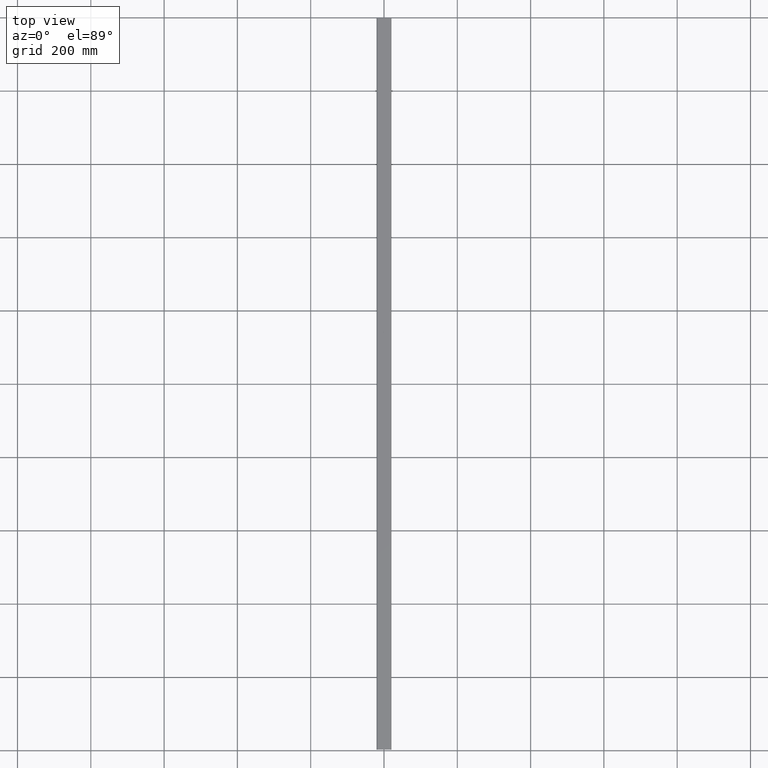
[diagram: clean part render]
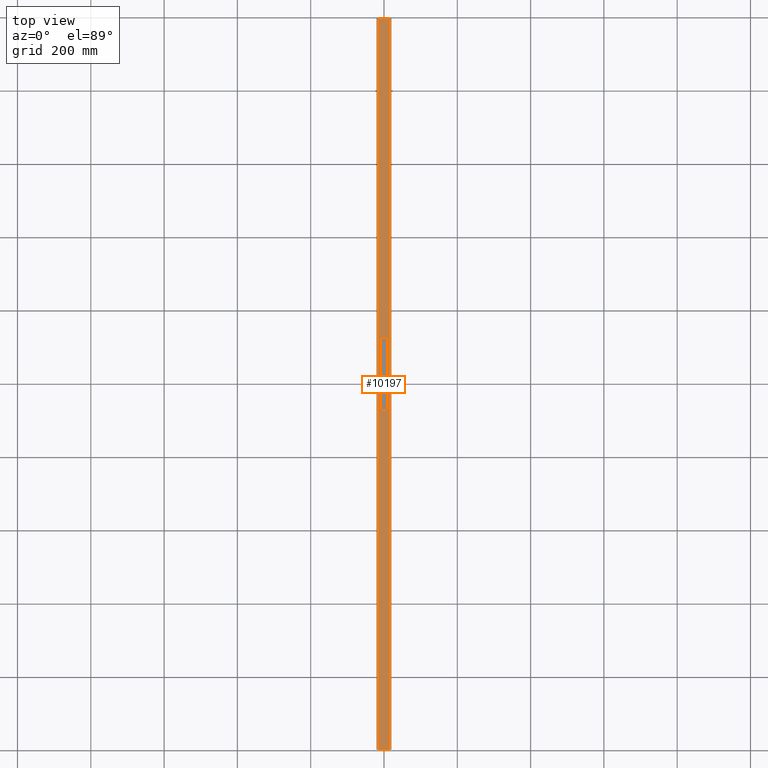
[diagram: same view with one face highlighted and labeled with its STEP entity id]
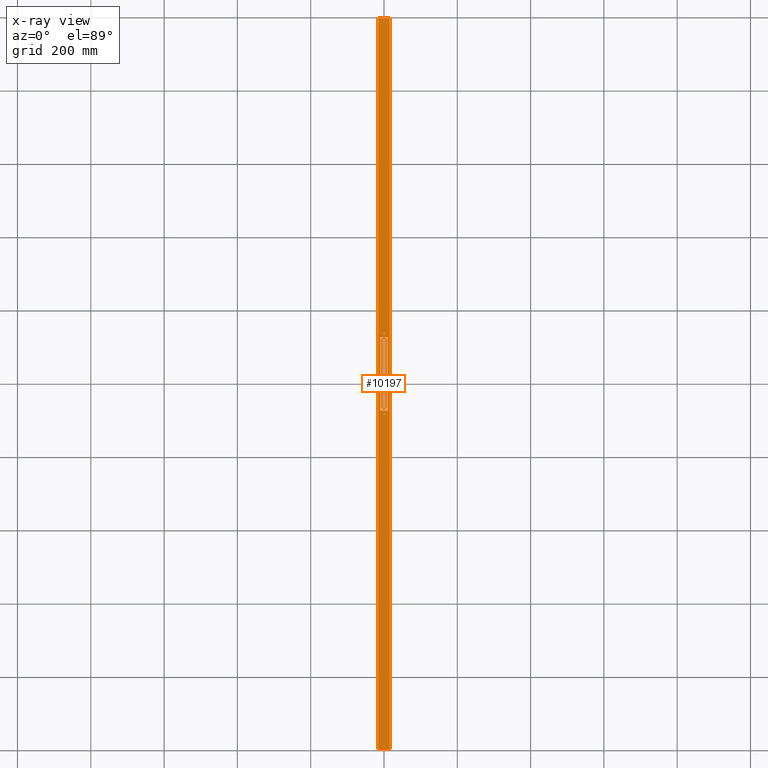
[diagram: x-ray of the same camera — body ghosted, the highlighted face saturated]
A machine part, top view. The second image highlights one B-rep face of the part: STEP entity #10197.
The next image is the same camera in x-ray: the body ghosted, the highlighted face saturated — about 0% of this face is hidden behind the body in this view.
In plain terms, the highlighted planar face has unit normal (-0, 0, -1).
Its self-contained STEP definition (entity closure, byte-faithful):
#12 = FACE_OUTER_BOUND ( 'NONE', #11079, .T. ) ;
#15 = LINE ( 'NONE', #11491, #6783 ) ;
#48 = VERTEX_POINT ( 'NONE', #8824 ) ;
#84 = EDGE_CURVE ( 'NONE', #3622, #10130, #11399, .T. ) ;
#243 = CARTESIAN_POINT ( 'NONE',  ( -15.99999999999999289, 997.5000000000000000, 20.00000000000000000 ) ) ;
#292 = CARTESIAN_POINT ( 'NONE',  ( -15.99999999999999289, -997.5000000000000000, 20.00000000000000000 ) ) ;
#666 = EDGE_CURVE ( 'NONE', #10130, #7740, #7988, .T. ) ;
#678 = CARTESIAN_POINT ( 'NONE',  ( 16.00000000000000711, -997.5000000000000000, 19.99999999999999645 ) ) ;
#818 = ORIENTED_EDGE ( 'NONE', *, *, #84, .T. ) ;
#991 = DIRECTION ( 'NONE',  ( 1.000000000000000000, 0.000000000000000000, 0.000000000000000000 ) ) ;
#1181 = LINE ( 'NONE', #8339, #9342 ) ;
#1745 = CARTESIAN_POINT ( 'NONE',  ( 10.00000000000000355, 126.9000000000001194, 20.00000000000000000 ) ) ;
#1796 = DIRECTION ( 'NONE',  ( -0.000000000000000000, -0.000000000000000000, 1.000000000000000000 ) ) ;
#1924 = EDGE_CURVE ( 'NONE', #10067, #48, #3072, .T. ) ;
#2048 = VERTEX_POINT ( 'NONE', #7143 ) ;
#2453 = EDGE_LOOP ( 'NONE', ( #10734 ) ) ;
#2487 = CIRCLE ( 'NONE', #3300, 2.100000000000000089 ) ;
#2631 = CARTESIAN_POINT ( 'NONE',  ( -15.99999999999999289, 997.5000000000000000, 20.00000000000000000 ) ) ;
#2919 = VECTOR ( 'NONE', #12287, 1000.000000000000000 ) ;
#3011 = AXIS2_PLACEMENT_3D ( 'NONE', #7179, #11682, #10744 ) ;
#3072 = LINE ( 'NONE', #8797, #11239 ) ;
#3188 = VECTOR ( 'NONE', #6109, 1000.000000000000000 ) ;
#3234 = CARTESIAN_POINT ( 'NONE',  ( 2.100000000000002309, -82.49999999999988631, 20.00000000000000000 ) ) ;
#3300 = AXIS2_PLACEMENT_3D ( 'NONE', #3805, #1796, #9686 ) ;
#3568 = ORIENTED_EDGE ( 'NONE', *, *, #3852, .F. ) ;
#3622 = VERTEX_POINT ( 'NONE', #2631 ) ;
#3805 = CARTESIAN_POINT ( 'NONE',  ( 2.168404344971008868E-15, 138.5000000000001137, 20.00000000000000000 ) ) ;
#3852 = EDGE_CURVE ( 'NONE', #11554, #10067, #6733, .T. ) ;
#3948 = CIRCLE ( 'NONE', #5791, 2.100000000000000089 ) ;
#4075 = CARTESIAN_POINT ( 'NONE',  ( -9.999999999999994671, -71.90000000000001990, 20.00000000000000000 ) ) ;
#4150 = EDGE_CURVE ( 'NONE', #3622, #2048, #1181, .T. ) ;
#4187 = CARTESIAN_POINT ( 'NONE',  ( -9.999999999999994671, -73.09999999999988063, 20.00000000000000000 ) ) ;
#4204 = CARTESIAN_POINT ( 'NONE',  ( 2.100000000000002309, 138.5000000000001137, 20.00000000000000000 ) ) ;
#4208 = EDGE_CURVE ( 'NONE', #9997, #9997, #3948, .T. ) ;
#4988 = ORIENTED_EDGE ( 'NONE', *, *, #7624, .F. ) ;
#5164 = DIRECTION ( 'NONE',  ( 1.000000000000000000, 0.000000000000000000, -1.084202172485504434E-16 ) ) ;
#5466 = ORIENTED_EDGE ( 'NONE', *, *, #4150, .F. ) ;
#5516 = VECTOR ( 'NONE', #5164, 1000.000000000000000 ) ;
#5791 = AXIS2_PLACEMENT_3D ( 'NONE', #12518, #7712, #12644 ) ;
#5963 = CARTESIAN_POINT ( 'NONE',  ( -10.00000000000001954, 126.9000000000001194, 20.00000000000000000 ) ) ;
#6109 = DIRECTION ( 'NONE',  ( -0.000000000000000000, -1.000000000000000000, -0.000000000000000000 ) ) ;
#6372 = EDGE_CURVE ( 'NONE', #7194, #11554, #11159, .T. ) ;
#6462 = FACE_BOUND ( 'NONE', #6771, .T. ) ;
#6733 = LINE ( 'NONE', #4075, #3188 ) ;
#6771 = EDGE_LOOP ( 'NONE', ( #7034 ) ) ;
#6783 = VECTOR ( 'NONE', #8567, 1000.000000000000000 ) ;
#6979 = LINE ( 'NONE', #11230, #11288 ) ;
#7034 = ORIENTED_EDGE ( 'NONE', *, *, #4208, .F. ) ;
#7143 = CARTESIAN_POINT ( 'NONE',  ( 16.00000000000000711, 997.5000000000000000, 19.99999999999999645 ) ) ;
#7179 = CARTESIAN_POINT ( 'NONE',  ( -15.99999999999999289, 997.5000000000000000, 20.00000000000000000 ) ) ;
#7194 = VERTEX_POINT ( 'NONE', #1745 ) ;
#7256 = FACE_BOUND ( 'NONE', #11579, .T. ) ;
#7624 = EDGE_CURVE ( 'NONE', #2048, #7740, #6979, .T. ) ;
#7632 = ORIENTED_EDGE ( 'NONE', *, *, #11596, .F. ) ;
#7712 = DIRECTION ( 'NONE',  ( -0.000000000000000000, -0.000000000000000000, 1.000000000000000000 ) ) ;
#7740 = VERTEX_POINT ( 'NONE', #678 ) ;
#7864 = ORIENTED_EDGE ( 'NONE', *, *, #1924, .F. ) ;
#7988 = LINE ( 'NONE', #11980, #5516 ) ;
#8171 = DIRECTION ( 'NONE',  ( -1.000000000000000000, -0.000000000000000000, -0.000000000000000000 ) ) ;
#8339 = CARTESIAN_POINT ( 'NONE',  ( -15.99999999999999289, 997.5000000000000000, 20.00000000000000000 ) ) ;
#8567 = DIRECTION ( 'NONE',  ( 0.000000000000000000, 1.000000000000000000, 0.000000000000000000 ) ) ;
#8797 = CARTESIAN_POINT ( 'NONE',  ( -9.999999999999994671, -73.09999999999988063, 20.00000000000000000 ) ) ;
#8824 = CARTESIAN_POINT ( 'NONE',  ( 10.00000000000003020, -73.09999999999988063, 20.00000000000000000 ) ) ;
#8928 = FACE_BOUND ( 'NONE', #2453, .T. ) ;
#9130 = EDGE_CURVE ( 'NONE', #11376, #11376, #2487, .T. ) ;
#9342 = VECTOR ( 'NONE', #9426, 1000.000000000000000 ) ;
#9426 = DIRECTION ( 'NONE',  ( 1.000000000000000000, 0.000000000000000000, -1.084202172485504434E-16 ) ) ;
#9575 = ORIENTED_EDGE ( 'NONE', *, *, #666, .T. ) ;
#9603 = VECTOR ( 'NONE', #8171, 1000.000000000000000 ) ;
#9686 = DIRECTION ( 'NONE',  ( 1.000000000000000000, 0.000000000000000000, 0.000000000000000000 ) ) ;
#9997 = VERTEX_POINT ( 'NONE', #3234 ) ;
#10067 = VERTEX_POINT ( 'NONE', #4187 ) ;
#10130 = VERTEX_POINT ( 'NONE', #292 ) ;
#10197 = ADVANCED_FACE ( 'NONE', ( #8928, #6462, #7256, #12 ), #11107, .F. ) ;
#10734 = ORIENTED_EDGE ( 'NONE', *, *, #9130, .F. ) ;
#10744 = DIRECTION ( 'NONE',  ( -1.000000000000000000, 0.000000000000000000, 1.084202172485504434E-16 ) ) ;
#11079 = EDGE_LOOP ( 'NONE', ( #9575, #4988, #5466, #818 ) ) ;
#11107 = PLANE ( 'NONE',  #3011 ) ;
#11159 = LINE ( 'NONE', #5963, #9603 ) ;
#11230 = CARTESIAN_POINT ( 'NONE',  ( 16.00000000000000711, 997.5000000000000000, 19.99999999999999645 ) ) ;
#11239 = VECTOR ( 'NONE', #991, 1000.000000000000000 ) ;
#11288 = VECTOR ( 'NONE', #12266, 1000.000000000000000 ) ;
#11313 = ORIENTED_EDGE ( 'NONE', *, *, #6372, .F. ) ;
#11376 = VERTEX_POINT ( 'NONE', #4204 ) ;
#11399 = LINE ( 'NONE', #243, #2919 ) ;
#11491 = CARTESIAN_POINT ( 'NONE',  ( 10.00000000000000533, -71.90000000000001990, 20.00000000000000000 ) ) ;
#11554 = VERTEX_POINT ( 'NONE', #12268 ) ;
#11579 = EDGE_LOOP ( 'NONE', ( #3568, #11313, #7632, #7864 ) ) ;
#11596 = EDGE_CURVE ( 'NONE', #48, #7194, #15, .T. ) ;
#11682 = DIRECTION ( 'NONE',  ( -1.084202172485504434E-16, 0.000000000000000000, -1.000000000000000000 ) ) ;
#11980 = CARTESIAN_POINT ( 'NONE',  ( -15.99999999999999289, -997.5000000000000000, 20.00000000000000000 ) ) ;
#12266 = DIRECTION ( 'NONE',  ( -0.000000000000000000, -1.000000000000000000, -0.000000000000000000 ) ) ;
#12268 = CARTESIAN_POINT ( 'NONE',  ( -10.00000000000001954, 126.9000000000001194, 20.00000000000000000 ) ) ;
#12287 = DIRECTION ( 'NONE',  ( -0.000000000000000000, -1.000000000000000000, -0.000000000000000000 ) ) ;
#12518 = CARTESIAN_POINT ( 'NONE',  ( 2.168404344971008868E-15, -82.49999999999988631, 20.00000000000000000 ) ) ;
#12644 = DIRECTION ( 'NONE',  ( 1.000000000000000000, 0.000000000000000000, 0.000000000000000000 ) ) ;